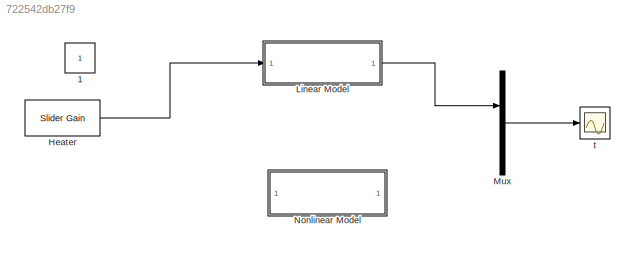
MODEL slx_722542db27f9
KIND model
CONFIG AbsTol = auto
CONFIG EnableMultiTasking = on
CONFIG FixedStep = auto
CONFIG MaxStep = auto
CONFIG MinStep = auto
CONFIG RelTol = 1e-3
CONFIG SampleTimeConstraint = Unconstrained
CONFIG SolverName = VariableStepAuto
CONFIG StartFcn = clear all
CONFIG StartTime = 0.0
CONFIG StopTime = 500
BLOCK [Constant] 1
  IOType = siggen
BLOCK [Reference] Heater  REF=simulink/Math
Operations/Slider
Gain
  Ports = [1, 1]
  SourceBlock = simulink/Math\nOperations/Slider\nGain
  SourceProductBaseCode = SL
  SourceType = Slider Gain
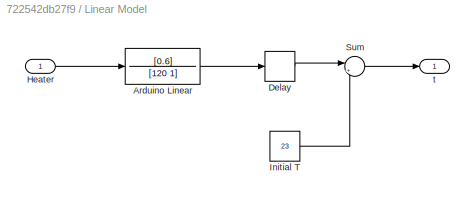
BLOCK [SubSystem] Linear Model
  Ports = [1, 1]
  RequestExecContextInheritance = off
BLOCK [TransferFcn] Linear Model/Arduino Linear
  Denominator = [120 1]
  Numerator = [0.6]
BLOCK [TransportDelay] Linear Model/Delay
  DelayTime = 3
  Ports = [1, 1]
BLOCK [Inport] Linear Model/Heater
BLOCK [Constant] Linear Model/Initial T
  Value = 23
BLOCK [Sum] Linear Model/Sum
  Inputs = |++
  Ports = [2, 1]
BLOCK [Outport] Linear Model/t
  VectorParamsAs1DForOutWhenUnconnected = off
BLOCK [Mux] Mux
  DisplayOption = bar
  Inputs = 2
  Ports = [2, 1]
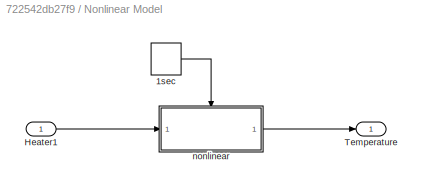
BLOCK [SubSystem] Nonlinear Model
  Ports = [1, 1]
  RequestExecContextInheritance = off
BLOCK [DiscretePulseGenerator] Nonlinear Model/1sec
  Period = 1
  Ports = [0, 1]
  PulseType = Time based
  PulseWidth = 50
BLOCK [Inport] Nonlinear Model/Heater1
BLOCK [Outport] Nonlinear Model/Temperature
  VectorParamsAs1DForOutWhenUnconnected = off
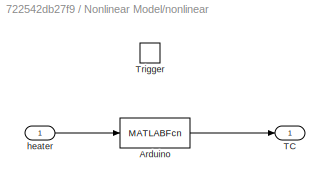
BLOCK [SubSystem] Nonlinear Model/nonlinear
  Ports = [1, 1, 0, 1]
  RequestExecContextInheritance = off
  TreatAsAtomicUnit = on
BLOCK [MATLABFcn] Nonlinear Model/nonlinear/Arduino
  MATLABFcn = heater
  Ports = [1, 1]
BLOCK [Outport] Nonlinear Model/nonlinear/TC
  InitialOutput = 23
  VectorParamsAs1DForOutWhenUnconnected = off
BLOCK [TriggerPort] Nonlinear Model/nonlinear/Trigger
  Ports = []
  StatesWhenEnabling = held
  VariantControl = Variant
BLOCK [Inport] Nonlinear Model/nonlinear/heater
  LatchByDelayingOutsideSignal = on
BLOCK [Scope] t
  Floating = off
  NumInputPorts = 1
  Ports = [1]
  ScopeSpecificationString = Simulink.scopes.TimeScopeBlockCfg('CurrentConfiguration', extmgr.ConfigurationSet(extmgr.Configuration('Core','General UI',true),extmgr.Configuration('Core','Source UI',true),extmgr.Configuration('Sources','WiredSimulink',true,'DataLoggingVariableName','ScopeData1'),extmgr.Configuration('Visuals','Time Domain',true,'SerializedDisplays',{struct('MinYLimReal','20.04757','MaxYLimReal','49.5719','YLab...<+1391ch>
LINE Heater:1 -> Linear Model:1
LINE Linear Model/Arduino Linear:1 -> Linear Model/Delay:1
LINE Linear Model/Delay:1 -> Linear Model/Sum:1
LINE Linear Model/Heater:1 -> Linear Model/Arduino Linear:1
LINE Linear Model/Initial T:1 -> Linear Model/Sum:2
LINE Linear Model/Sum:1 -> Linear Model/t:1
LINE Linear Model:1 -> Mux:1
LINE Mux:1 -> t:1
LINE Nonlinear Model/1sec:1 -> Nonlinear Model/nonlinear:trigger
LINE Nonlinear Model/Heater1:1 -> Nonlinear Model/nonlinear:1
LINE Nonlinear Model/nonlinear/Arduino:1 -> Nonlinear Model/nonlinear/TC:1
LINE Nonlinear Model/nonlinear/heater:1 -> Nonlinear Model/nonlinear/Arduino:1
LINE Nonlinear Model/nonlinear:1 -> Nonlinear Model/Temperature:1
